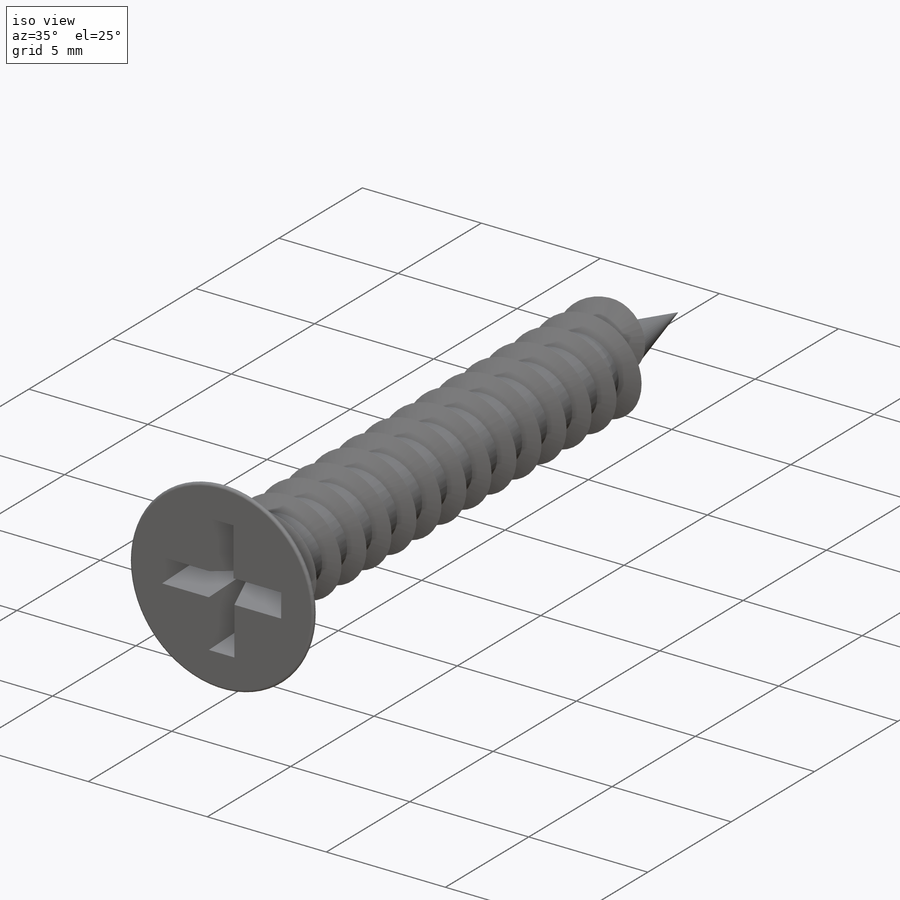
[diagram: iso view]
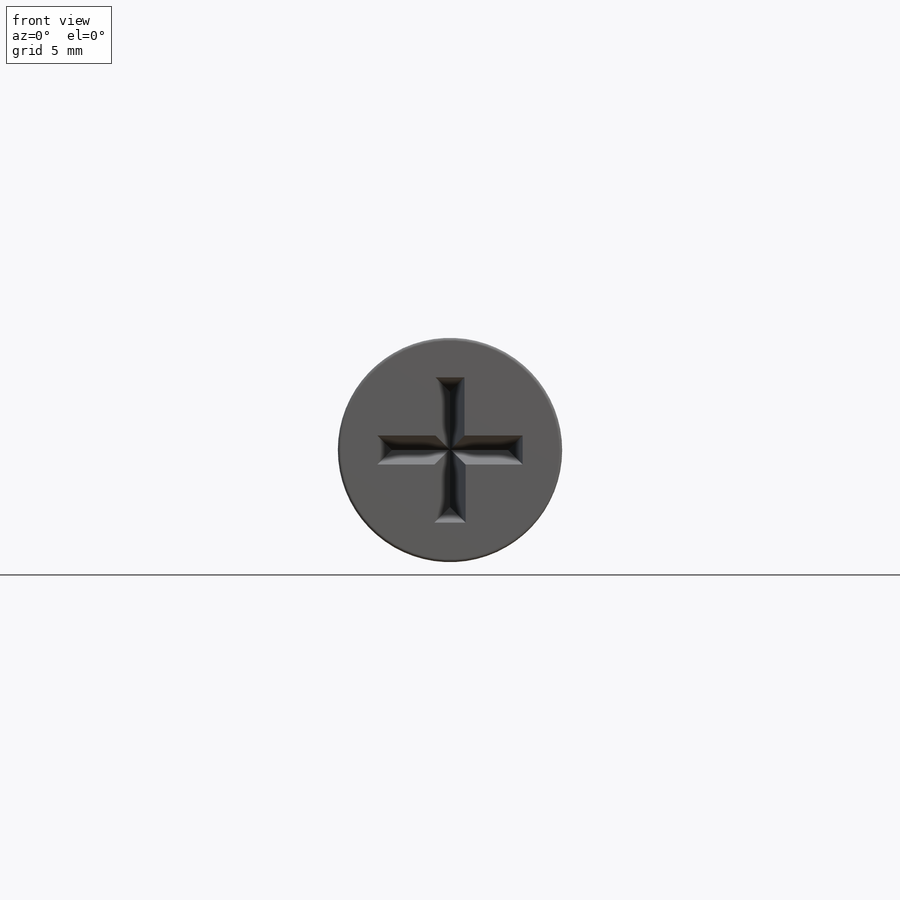
[diagram: front view]
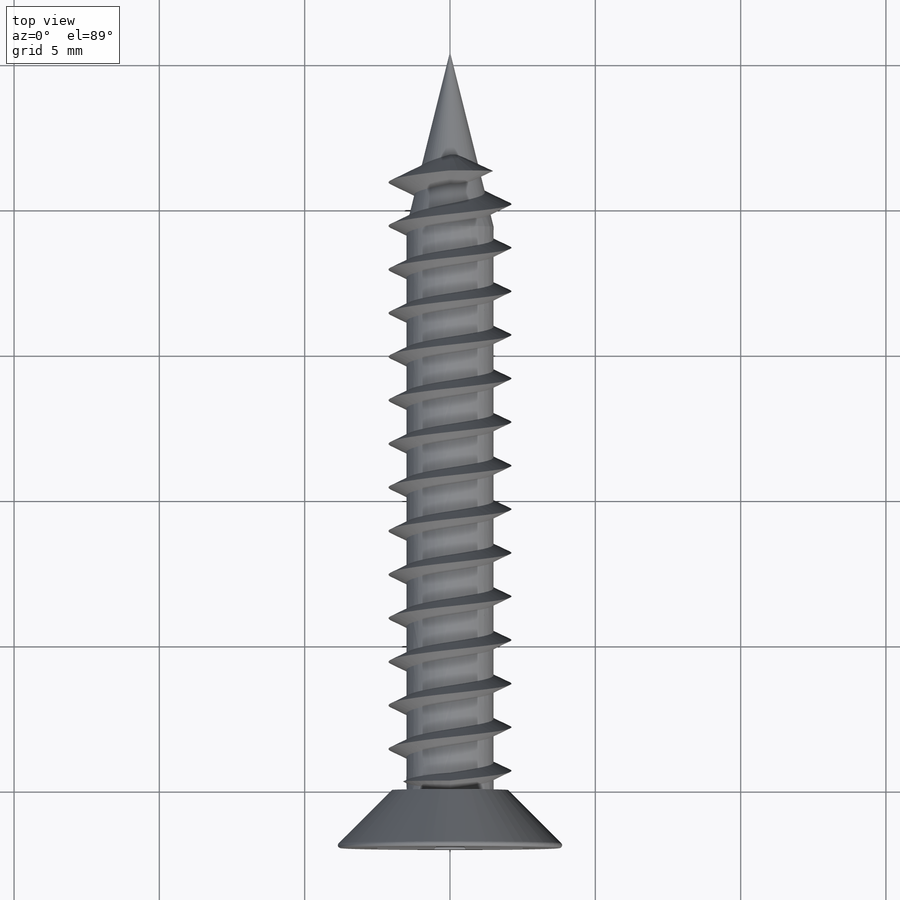
[diagram: top view]
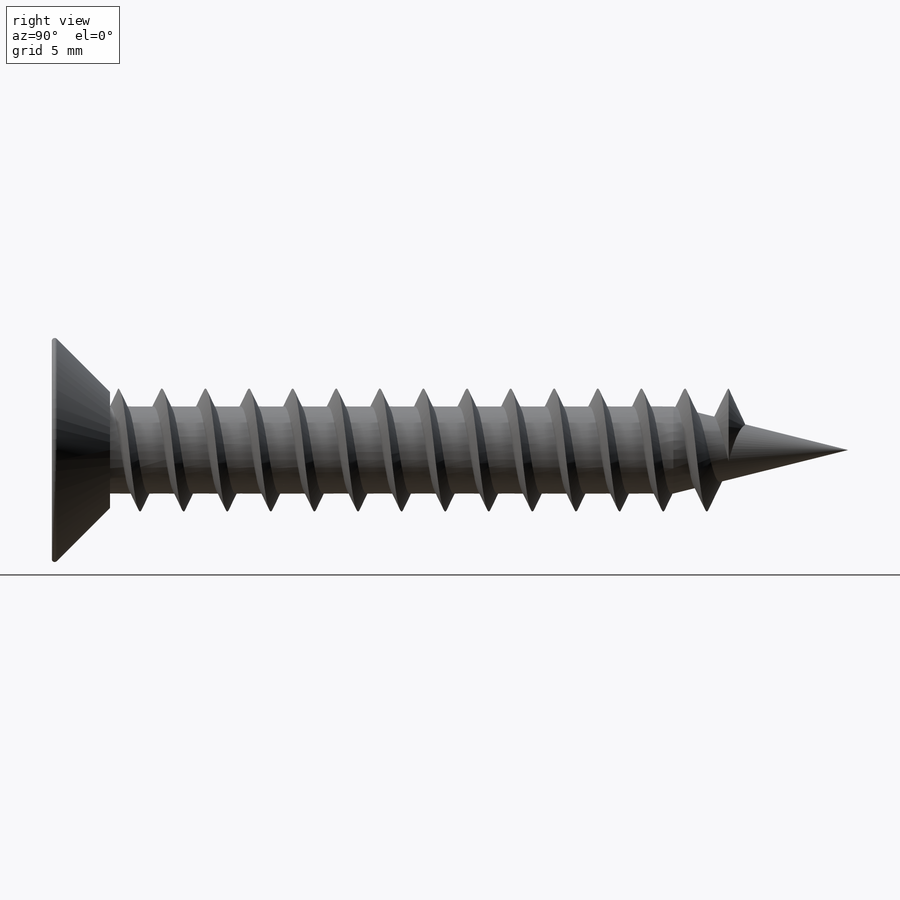
[diagram: right view]
SOLIDWORKS PART (.sldprt)
format: sldprt  version: not decoded by parser v0  size: 763,904 bytes
history: native  units: mm
features: sketch x9, sweep x3, extrude x2, chamfer x2, material x1, helix x1, cut_extrude x1, plane x1, fillet x1 + 1 further entry (+12 scaffold rows collapsed)
feature tree (34):
  scaffold x12  (default folders/planes/origin — collapsed)
  material  "Material <not specified>"
  "Design Table"
  sketch  "Sketch1"  dims[D1=3.0mm]
  extrude  "Base-Extrude"  Depth=38.1mm SCREW LENGTH=38.1mm
  sketch  "Sketch2"
  sketch  "Sketch3"
  helix  "Helix1"  Pitch=31.5mm THREAD LENGTH=31.5mm REVOLUTIONS=21
  sweep  "Boss-Sweep1"
  sketch  "Sketch4"  dims[D1=8.0mm]
  extrude  "Boss-Extrude1"  Depth=2mm
  chamfer  "Chamfer3"  Distance=2mm Angle=45deg
  chamfer  "Chamfer4"  Distance=1.5mm Angle=76deg
  sketch  "Sketch5"  dims[c1.D1=6.0mm c1.D2=5.0mm c1.D3=0.5mm c1.D4=0.5mm c1.D5=0.5mm c1.D6=~8.134207mm c2.D1=2.5mm c2.D6=2.5mm c2.D7=2.5mm]
  cut_extrude  "Cut-Extrude3"  Depth=5mm
  sketch  "Sketch6"
  sketch  "Sketch7"
  sweep  "Sweep1"
  plane  "Plane1"  Offset=35mm
  sketch  "Sketch8"
  sketch  "Sketch9"
  sweep  "Sweep3"
  fillet  "Fillet1"  Radius=0.1mm
decode coverage: 10 of 19 modeling features carry decoded parameters; 1 rows unclassified (native names shown)
note: ~ marks probable driven/reference dimensions
note: suppression state not decoded; provenance and decode notes live in map.json
